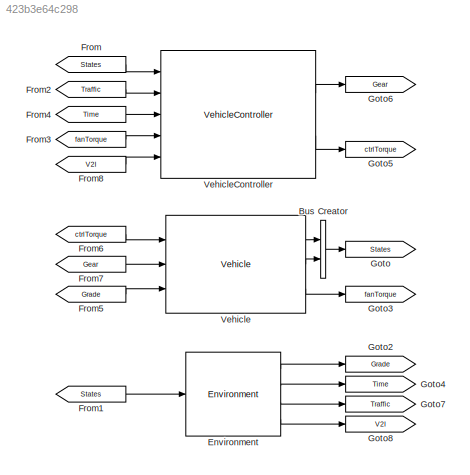
MODEL slx_423b3e64c298
KIND model
CONFIG AbsTol = auto
CONFIG EnableMultiTasking = off
CONFIG FixedStep = timeStep
CONFIG MaxStep = auto
CONFIG MinStep = auto
CONFIG RelTol = 1e-3
CONFIG SampleTimeConstraint = Unconstrained
CONFIG Solver = FixedStepAuto
CONFIG SolverName = FixedStepAuto
CONFIG StartTime = 0.0
CONFIG StopTime = 8000
BLOCK [BusCreator] Bus Creator
  DisplayOption = bar
  InheritFromInputs = on
  Inputs = 2
  Ports = [2, 1]
BLOCK [Reference] Environment  REF=Environment_ul/Environment
  Ports = [1, 4]
  SourceBlock = Environment_ul/Environment
  SourceType = SubSystem
BLOCK [From] From
  GotoTag = States
BLOCK [From] From1
  GotoTag = States
BLOCK [From] From2
  GotoTag = Traffic
BLOCK [From] From3
  GotoTag = fanTorque
BLOCK [From] From4
  GotoTag = Time
BLOCK [From] From5
  GotoTag = Grade
BLOCK [From] From6
  GotoTag = ctrlTorque
BLOCK [From] From7
  GotoTag = Gear
BLOCK [From] From8
  GotoTag = V2I
BLOCK [Goto] Goto
  GotoTag = States
BLOCK [Goto] Goto2
  GotoTag = Grade
BLOCK [Goto] Goto3
  GotoTag = fanTorque
BLOCK [Goto] Goto4
  GotoTag = Time
BLOCK [Goto] Goto5
  GotoTag = ctrlTorque
BLOCK [Goto] Goto6
  GotoTag = Gear
BLOCK [Goto] Goto7
  GotoTag = Traffic
BLOCK [Goto] Goto8
  GotoTag = V2I
BLOCK [Reference] Vehicle  REF=Vehicle_cl/Vehicle
  Ports = [3, 3]
  SourceBlock = Vehicle_cl/Vehicle
  SourceType = SubSystem
BLOCK [Reference] VehicleController  REF=VehicleController_cl/VehicleController
  Ports = [5, 2]
  SourceBlock = VehicleController_cl/VehicleController
  SourceType = SubSystem
LINE Bus Creator:1 -> Goto:1
LINE Environment:1 -> Goto2:1
LINE Environment:2 -> Goto4:1
LINE Environment:3 -> Goto7:1
LINE Environment:4 -> Goto8:1
LINE From1:1 -> Environment:1
LINE From2:1 -> VehicleController:2
LINE From3:1 -> VehicleController:4
LINE From4:1 -> VehicleController:3
LINE From5:1 -> Vehicle:3
LINE From6:1 -> Vehicle:1
LINE From7:1 -> Vehicle:2
LINE From8:1 -> VehicleController:5
LINE From:1 -> VehicleController:1
LINE Vehicle:1 -> Bus Creator:1
LINE Vehicle:2 -> Bus Creator:2
LINE Vehicle:3 -> Goto3:1
LINE VehicleController:1 -> Goto6:1
LINE VehicleController:2 -> Goto5:1
